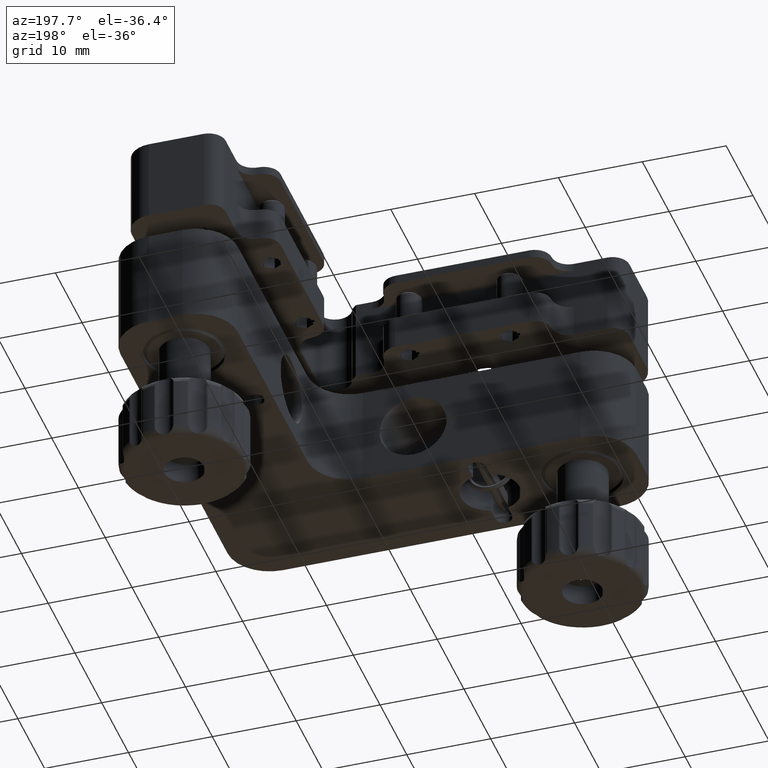
[diagram: clean part render]
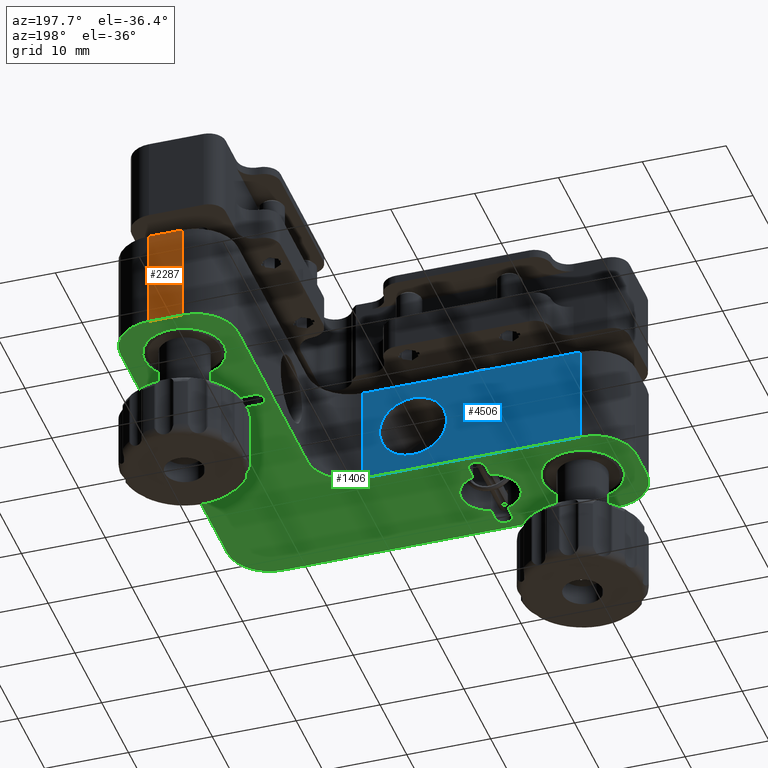
[diagram: same view with three faces highlighted in distinct colors, each labeled with its STEP entity id]
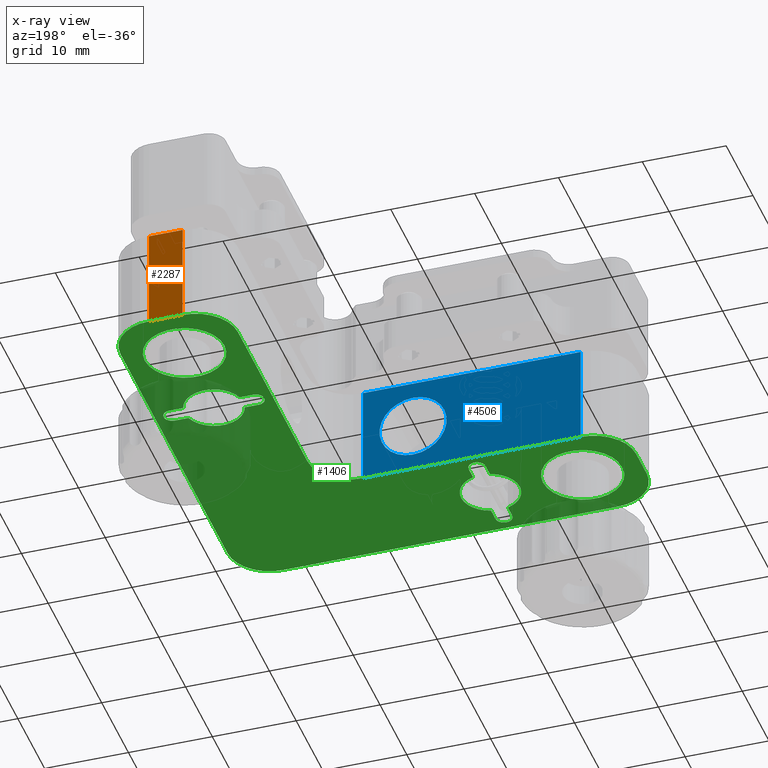
[diagram: x-ray of the same camera — body ghosted, the three highlighted faces saturated]
A machine part, auxiliary view with three faces highlighted in distinct colors.
The next image is the same camera in x-ray (body ghosted, the three faces saturated) — at least one of them is partly hidden behind the body in this view.
Their STEP definitions:

[orange] entity #2287 — the highlighted planar face has unit normal (0, 1, 0).
#212 = ORIENTED_EDGE ( 'NONE', *, *, #15155, .F. ) ;
#324 = EDGE_CURVE ( 'NONE', #1726, #4502, #9716, .T. ) ;
#819 = VECTOR ( 'NONE', #13203, 1000.000000000000000 ) ;
#1460 = CARTESIAN_POINT ( 'NONE',  ( 16.00000000000001421, 25.00000000000000711, -15.00000000000000355 ) ) ;
#1726 = VERTEX_POINT ( 'NONE', #10357 ) ;
#2287 = ADVANCED_FACE ( 'NONE', ( #5908 ), #3183, .T. ) ;
#2784 = DIRECTION ( 'NONE',  ( -1.000000000000000000, -0.000000000000000000, -0.000000000000000000 ) ) ;
#3183 = PLANE ( 'NONE',  #11677 ) ;
#3325 = VECTOR ( 'NONE', #8730, 1000.000000000000000 ) ;
#3950 = CARTESIAN_POINT ( 'NONE',  ( 16.00000000000001421, 25.00000000000000000, -15.00000000000000355 ) ) ;
#4413 = CARTESIAN_POINT ( 'NONE',  ( 16.00000000000001421, 25.00000000000000711, -15.00000000000000355 ) ) ;
#4502 = VERTEX_POINT ( 'NONE', #3950 ) ;
#4734 = CARTESIAN_POINT ( 'NONE',  ( 16.00000000000001421, 25.00000000000000000, -3.000000000000002665 ) ) ;
#4789 = CARTESIAN_POINT ( 'NONE',  ( 16.00000000000001421, 25.00000000000000711, -3.000000000000002665 ) ) ;
#5269 = VECTOR ( 'NONE', #2784, 1000.000000000000000 ) ;
#5908 = FACE_OUTER_BOUND ( 'NONE', #9624, .T. ) ;
#6454 = VERTEX_POINT ( 'NONE', #4734 ) ;
#6586 = LINE ( 'NONE', #14523, #10664 ) ;
#7029 = DIRECTION ( 'NONE',  ( 0.000000000000000000, -0.000000000000000000, 1.000000000000000000 ) ) ;
#7369 = CARTESIAN_POINT ( 'NONE',  ( 20.00000000000001776, 25.00000000000000711, -3.000000000000002665 ) ) ;
#7823 = CARTESIAN_POINT ( 'NONE',  ( 16.00000000000001421, 25.00000000000000000, -15.00000000000000355 ) ) ;
#8730 = DIRECTION ( 'NONE',  ( -1.000000000000000000, -0.000000000000000000, -0.000000000000000000 ) ) ;
#9624 = EDGE_LOOP ( 'NONE', ( #212, #11743, #15678, #11580 ) ) ;
#9716 = LINE ( 'NONE', #1460, #5269 ) ;
#10357 = CARTESIAN_POINT ( 'NONE',  ( 20.00000000000001776, 25.00000000000000711, -15.00000000000000355 ) ) ;
#10664 = VECTOR ( 'NONE', #14431, 1000.000000000000000 ) ;
#11006 = EDGE_CURVE ( 'NONE', #1726, #17204, #6586, .T. ) ;
#11258 = DIRECTION ( 'NONE',  ( 0.000000000000000000, 1.000000000000000000, 0.000000000000000000 ) ) ;
#11580 = ORIENTED_EDGE ( 'NONE', *, *, #15817, .T. ) ;
#11677 = AXIS2_PLACEMENT_3D ( 'NONE', #4413, #11258, #7029 ) ;
#11743 = ORIENTED_EDGE ( 'NONE', *, *, #11006, .F. ) ;
#13203 = DIRECTION ( 'NONE',  ( 0.000000000000000000, 0.000000000000000000, 1.000000000000000000 ) ) ;
#13362 = LINE ( 'NONE', #7823, #819 ) ;
#14431 = DIRECTION ( 'NONE',  ( 0.000000000000000000, 0.000000000000000000, 1.000000000000000000 ) ) ;
#14523 = CARTESIAN_POINT ( 'NONE',  ( 20.00000000000001776, 25.00000000000000711, -15.00000000000000355 ) ) ;
#15155 = EDGE_CURVE ( 'NONE', #17204, #6454, #15521, .T. ) ;
#15521 = LINE ( 'NONE', #4789, #3325 ) ;
#15678 = ORIENTED_EDGE ( 'NONE', *, *, #324, .T. ) ;
#15817 = EDGE_CURVE ( 'NONE', #4502, #6454, #13362, .T. ) ;
#17204 = VERTEX_POINT ( 'NONE', #7369 ) ;

[blue] entity #4506 — the highlighted planar face has unit normal (0, 1, -0).
#345 = CARTESIAN_POINT ( 'NONE',  ( -19.99999999999999645, -10.99999999999999289, -15.00000000000000355 ) ) ;
#717 = ORIENTED_EDGE ( 'NONE', *, *, #3877, .T. ) ;
#830 = DIRECTION ( 'NONE',  ( 0.000000000000000000, 0.000000000000000000, 1.000000000000000000 ) ) ;
#917 = VECTOR ( 'NONE', #14441, 1000.000000000000000 ) ;
#1226 = ORIENTED_EDGE ( 'NONE', *, *, #10425, .T. ) ;
#1540 = CARTESIAN_POINT ( 'NONE',  ( 6.000000000000008882, -11.00000000000000711, -3.000000000000002665 ) ) ;
#2403 = CARTESIAN_POINT ( 'NONE',  ( -19.99999999999999645, -10.99999999999999289, -15.00000000000000355 ) ) ;
#3157 = ORIENTED_EDGE ( 'NONE', *, *, #3227, .T. ) ;
#3227 = EDGE_CURVE ( 'NONE', #12491, #5750, #5522, .T. ) ;
#3617 = VERTEX_POINT ( 'NONE', #1540 ) ;
#3684 = DIRECTION ( 'NONE',  ( -5.337610695313251385E-16, -1.000000000000000000, 0.000000000000000000 ) ) ;
#3806 = CARTESIAN_POINT ( 'NONE',  ( 6.000000000000008882, -11.00000000000000711, -15.00000000000000355 ) ) ;
#3877 = EDGE_CURVE ( 'NONE', #9096, #14904, #14428, .T. ) ;
#3888 = DIRECTION ( 'NONE',  ( -1.000000000000000000, 5.337610695313251385E-16, -0.000000000000000000 ) ) ;
#4199 = EDGE_CURVE ( 'NONE', #3617, #5137, #13977, .T. ) ;
#4213 = PLANE ( 'NONE',  #6105 ) ;
#4259 = ORIENTED_EDGE ( 'NONE', *, *, #4199, .F. ) ;
#4379 = DIRECTION ( 'NONE',  ( 5.337610695313251385E-16, 1.000000000000000000, -0.000000000000000000 ) ) ;
#4440 = EDGE_LOOP ( 'NONE', ( #4259, #9787, #717, #15736 ) ) ;
#4506 = ADVANCED_FACE ( 'NONE', ( #10971, #10881 ), #4213, .T. ) ;
#4827 = CARTESIAN_POINT ( 'NONE',  ( 6.000000000000008882, -11.00000000000000711, -15.00000000000000355 ) ) ;
#5137 = VERTEX_POINT ( 'NONE', #7139 ) ;
#5315 = DIRECTION ( 'NONE',  ( -1.000000000000000000, 4.336808689942017736E-16, 0.000000000000000000 ) ) ;
#5522 = CIRCLE ( 'NONE', #8304, 4.000000000000000000 ) ;
#5750 = VERTEX_POINT ( 'NONE', #8618 ) ;
#5896 = CARTESIAN_POINT ( 'NONE',  ( -19.99999999999999645, -10.99999999999999289, -3.000000000000002665 ) ) ;
#6105 = AXIS2_PLACEMENT_3D ( 'NONE', #345, #4379, #8058 ) ;
#7139 = CARTESIAN_POINT ( 'NONE',  ( -19.99999999999999645, -11.00000000000000000, -3.000000000000002665 ) ) ;
#7284 = DIRECTION ( 'NONE',  ( -1.000000000000000000, 5.337610695313251385E-16, -0.000000000000000000 ) ) ;
#7303 = LINE ( 'NONE', #13903, #9207 ) ;
#7364 = CARTESIAN_POINT ( 'NONE',  ( -3.003590182049984513E-17, -11.00000000000000355, -9.000000000000003553 ) ) ;
#7928 = CARTESIAN_POINT ( 'NONE',  ( -3.003590182049984513E-17, -11.00000000000000355, -9.000000000000003553 ) ) ;
#8058 = DIRECTION ( 'NONE',  ( -1.000000000000000000, 5.337610695313251385E-16, 0.000000000000000000 ) ) ;
#8304 = AXIS2_PLACEMENT_3D ( 'NONE', #7364, #3684, #12743 ) ;
#8469 = EDGE_CURVE ( 'NONE', #9096, #3617, #14703, .T. ) ;
#8618 = CARTESIAN_POINT ( 'NONE',  ( -3.003590182049984513E-17, -11.00000000000000355, -13.00000000000000355 ) ) ;
#9096 = VERTEX_POINT ( 'NONE', #4827 ) ;
#9207 = VECTOR ( 'NONE', #830, 1000.000000000000000 ) ;
#9787 = ORIENTED_EDGE ( 'NONE', *, *, #8469, .F. ) ;
#10302 = VECTOR ( 'NONE', #7284, 1000.000000000000000 ) ;
#10425 = EDGE_CURVE ( 'NONE', #5750, #12491, #15981, .T. ) ;
#10881 = FACE_BOUND ( 'NONE', #14307, .T. ) ;
#10971 = FACE_OUTER_BOUND ( 'NONE', #4440, .T. ) ;
#11195 = AXIS2_PLACEMENT_3D ( 'NONE', #7928, #14365, #5315 ) ;
#12491 = VERTEX_POINT ( 'NONE', #16600 ) ;
#12743 = DIRECTION ( 'NONE',  ( -1.000000000000000000, 4.336808689942017736E-16, 0.000000000000000000 ) ) ;
#13903 = CARTESIAN_POINT ( 'NONE',  ( -19.99999999999999645, -11.00000000000000000, -15.00000000000000355 ) ) ;
#13977 = LINE ( 'NONE', #5896, #10302 ) ;
#14307 = EDGE_LOOP ( 'NONE', ( #1226, #3157 ) ) ;
#14365 = DIRECTION ( 'NONE',  ( -5.337610695313251385E-16, -1.000000000000000000, 0.000000000000000000 ) ) ;
#14428 = LINE ( 'NONE', #2403, #16773 ) ;
#14441 = DIRECTION ( 'NONE',  ( 0.000000000000000000, 0.000000000000000000, 1.000000000000000000 ) ) ;
#14703 = LINE ( 'NONE', #3806, #917 ) ;
#14904 = VERTEX_POINT ( 'NONE', #15980 ) ;
#15698 = EDGE_CURVE ( 'NONE', #14904, #5137, #7303, .T. ) ;
#15736 = ORIENTED_EDGE ( 'NONE', *, *, #15698, .T. ) ;
#15980 = CARTESIAN_POINT ( 'NONE',  ( -19.99999999999999645, -11.00000000000000000, -15.00000000000000355 ) ) ;
#15981 = CIRCLE ( 'NONE', #11195, 4.000000000000000000 ) ;
#16600 = CARTESIAN_POINT ( 'NONE',  ( 4.598228178384413761E-16, -11.00000000000000355, -5.000000000000002665 ) ) ;
#16773 = VECTOR ( 'NONE', #3888, 1000.000000000000000 ) ;

[green] entity #1406 — the highlighted planar face has unit normal (-0, 0, -1).
#38 = CARTESIAN_POINT ( 'NONE',  ( -7.999999999999986677, -13.00000000000000178, -15.00000000000000355 ) ) ;
#125 = DIRECTION ( 'NONE',  ( 0.000000000000000000, 0.000000000000000000, 1.000000000000000000 ) ) ;
#137 = DIRECTION ( 'NONE',  ( -1.000000000000000000, 0.000000000000000000, 0.000000000000000000 ) ) ;
#324 = EDGE_CURVE ( 'NONE', #1726, #4502, #9716, .T. ) ;
#364 = DIRECTION ( 'NONE',  ( 0.000000000000000000, -1.000000000000000000, 0.000000000000000000 ) ) ;
#388 = ORIENTED_EDGE ( 'NONE', *, *, #4097, .F. ) ;
#407 = ORIENTED_EDGE ( 'NONE', *, *, #16869, .F. ) ;
#507 = ORIENTED_EDGE ( 'NONE', *, *, #9056, .F. ) ;
#540 = VECTOR ( 'NONE', #5775, 1000.000000000000000 ) ;
#675 = EDGE_CURVE ( 'NONE', #14705, #3246, #2149, .T. ) ;
#708 = VERTEX_POINT ( 'NONE', #7489 ) ;
#739 = CIRCLE ( 'NONE', #3817, 1.000000000000000888 ) ;
#756 = VECTOR ( 'NONE', #3103, 1000.000000000000000 ) ;
#762 = CIRCLE ( 'NONE', #4951, 5.000000000000004441 ) ;
#814 = CARTESIAN_POINT ( 'NONE',  ( -6.999999999999989342, -23.00000000000000355, -15.00000000000000355 ) ) ;
#848 = VECTOR ( 'NONE', #6955, 1000.000000000000000 ) ;
#1170 = VERTEX_POINT ( 'NONE', #4662 ) ;
#1195 = CARTESIAN_POINT ( 'NONE',  ( -19.99999999999999645, -25.00000000000001066, -15.00000000000000355 ) ) ;
#1406 = ADVANCED_FACE ( 'NONE', ( #11783, #3955, #2826, #7812, #11862 ), #12036, .T. ) ;
#1419 = CARTESIAN_POINT ( 'NONE',  ( -22.74999999999998934, -18.00000000000000355, -15.00000000000000355 ) ) ;
#1420 = DIRECTION ( 'NONE',  ( 0.000000000000000000, 0.000000000000000000, 1.000000000000000000 ) ) ;
#1428 = EDGE_CURVE ( 'NONE', #4502, #16814, #13385, .T. ) ;
#1460 = CARTESIAN_POINT ( 'NONE',  ( 16.00000000000001421, 25.00000000000000711, -15.00000000000000355 ) ) ;
#1499 = EDGE_CURVE ( 'NONE', #1170, #15603, #739, .T. ) ;
#1561 = VERTEX_POINT ( 'NONE', #14945 ) ;
#1572 = VECTOR ( 'NONE', #14721, 1000.000000000000000 ) ;
#1584 = DIRECTION ( 'NONE',  ( -1.000000000000000000, 0.000000000000000000, 0.000000000000000000 ) ) ;
#1650 = CIRCLE ( 'NONE', #7801, 1.000000000000000888 ) ;
#1726 = VERTEX_POINT ( 'NONE', #10357 ) ;
#1804 = VERTEX_POINT ( 'NONE', #14480 ) ;
#1910 = DIRECTION ( 'NONE',  ( 1.000000000000000000, 0.000000000000000000, 0.000000000000000000 ) ) ;
#1912 = VECTOR ( 'NONE', #364, 1000.000000000000000 ) ;
#1939 = VERTEX_POINT ( 'NONE', #14664 ) ;
#1965 = CARTESIAN_POINT ( 'NONE',  ( -7.999999999999989342, -23.00000000000000355, -15.00000000000000355 ) ) ;
#2101 = LINE ( 'NONE', #7264, #8095 ) ;
#2149 = LINE ( 'NONE', #2332, #13413 ) ;
#2253 = DIRECTION ( 'NONE',  ( 1.000000000000000000, 0.000000000000000000, 0.000000000000000000 ) ) ;
#2301 = DIRECTION ( 'NONE',  ( 1.000000000000000000, 0.000000000000000000, 0.000000000000000000 ) ) ;
#2314 = CIRCLE ( 'NONE', #12392, 5.000000000000000888 ) ;
#2332 = CARTESIAN_POINT ( 'NONE',  ( -5.999999999999986677, -13.00000000000000178, -15.00000000000000355 ) ) ;
#2378 = EDGE_CURVE ( 'NONE', #16214, #1804, #4667, .T. ) ;
#2403 = CARTESIAN_POINT ( 'NONE',  ( -19.99999999999999645, -10.99999999999999289, -15.00000000000000355 ) ) ;
#2515 = EDGE_CURVE ( 'NONE', #17103, #1170, #8863, .T. ) ;
#2594 = AXIS2_PLACEMENT_3D ( 'NONE', #7407, #11465, #2253 ) ;
#2641 = DIRECTION ( 'NONE',  ( -1.000000000000000000, 0.000000000000000000, 0.000000000000000000 ) ) ;
#2721 = VECTOR ( 'NONE', #13731, 1000.000000000000000 ) ;
#2784 = DIRECTION ( 'NONE',  ( -1.000000000000000000, -0.000000000000000000, -0.000000000000000000 ) ) ;
#2817 = CIRCLE ( 'NONE', #12643, 1.000000000000000000 ) ;
#2826 = FACE_BOUND ( 'NONE', #8842, .T. ) ;
#2835 = CARTESIAN_POINT ( 'NONE',  ( 14.64589803375031707, 6.000000000000000000, -15.00000000000000355 ) ) ;
#2847 = LINE ( 'NONE', #9672, #2721 ) ;
#2885 = CARTESIAN_POINT ( 'NONE',  ( -25.00000000000000000, -19.99999999999999645, -15.00000000000000355 ) ) ;
#3001 = AXIS2_PLACEMENT_3D ( 'NONE', #4164, #13635, #5646 ) ;
#3103 = DIRECTION ( 'NONE',  ( -0.000000000000000000, 1.000000000000000000, -0.000000000000000000 ) ) ;
#3151 = DIRECTION ( 'NONE',  ( 0.000000000000000000, 0.000000000000000000, 1.000000000000000000 ) ) ;
#3246 = VERTEX_POINT ( 'NONE', #14399 ) ;
#3322 = LINE ( 'NONE', #12730, #540 ) ;
#3550 = VERTEX_POINT ( 'NONE', #10963 ) ;
#3579 = CARTESIAN_POINT ( 'NONE',  ( 11.00000000000001599, 19.99999999999998934, -15.00000000000000355 ) ) ;
#3661 = DIRECTION ( 'NONE',  ( 1.000000000000000000, 0.000000000000000000, 0.000000000000000000 ) ) ;
#3692 = DIRECTION ( 'NONE',  ( -0.000000000000000000, -0.000000000000000000, -1.000000000000000000 ) ) ;
#3755 = VERTEX_POINT ( 'NONE', #1195 ) ;
#3784 = VERTEX_POINT ( 'NONE', #14691 ) ;
#3817 = AXIS2_PLACEMENT_3D ( 'NONE', #11149, #12302, #1584 ) ;
#3877 = EDGE_CURVE ( 'NONE', #9096, #14904, #14428, .T. ) ;
#3888 = DIRECTION ( 'NONE',  ( -1.000000000000000000, 5.337610695313251385E-16, -0.000000000000000000 ) ) ;
#3890 = AXIS2_PLACEMENT_3D ( 'NONE', #11532, #10204, #8871 ) ;
#3909 = ORIENTED_EDGE ( 'NONE', *, *, #2515, .F. ) ;
#3950 = CARTESIAN_POINT ( 'NONE',  ( 16.00000000000001421, 25.00000000000000000, -15.00000000000000355 ) ) ;
#3955 = FACE_BOUND ( 'NONE', #5459, .T. ) ;
#4007 = EDGE_CURVE ( 'NONE', #708, #12458, #13544, .T. ) ;
#4097 = EDGE_CURVE ( 'NONE', #3755, #6474, #9923, .T. ) ;
#4123 = CIRCLE ( 'NONE', #15082, 3.499999999999999556 ) ;
#4130 = CIRCLE ( 'NONE', #15648, 3.499999999999999556 ) ;
#4164 = CARTESIAN_POINT ( 'NONE',  ( -17.99999999999998934, -18.00000000000000355, -15.00000000000000355 ) ) ;
#4269 = CIRCLE ( 'NONE', #2594, 3.499999999999997780 ) ;
#4315 = EDGE_CURVE ( 'NONE', #3550, #5219, #5830, .T. ) ;
#4401 = VECTOR ( 'NONE', #7556, 1000.000000000000000 ) ;
#4502 = VERTEX_POINT ( 'NONE', #3950 ) ;
#4577 = ORIENTED_EDGE ( 'NONE', *, *, #14554, .T. ) ;
#4594 = VERTEX_POINT ( 'NONE', #9829 ) ;
#4662 = CARTESIAN_POINT ( 'NONE',  ( 13.00000000000000178, 6.000000000000000000, -15.00000000000000355 ) ) ;
#4667 = LINE ( 'NONE', #8522, #756 ) ;
#4675 = CARTESIAN_POINT ( 'NONE',  ( 12.00000000000000000, 7.000000000000001776, -15.00000000000000355 ) ) ;
#4819 = ORIENTED_EDGE ( 'NONE', *, *, #11593, .F. ) ;
#4827 = CARTESIAN_POINT ( 'NONE',  ( 6.000000000000008882, -11.00000000000000711, -15.00000000000000355 ) ) ;
#4877 = ORIENTED_EDGE ( 'NONE', *, *, #13660, .T. ) ;
#4912 = DIRECTION ( 'NONE',  ( -1.000000000000000000, 0.000000000000000000, 0.000000000000000000 ) ) ;
#4951 = AXIS2_PLACEMENT_3D ( 'NONE', #14559, #7937, #137 ) ;
#4972 = AXIS2_PLACEMENT_3D ( 'NONE', #17166, #17250, #6411 ) ;
#5011 = CARTESIAN_POINT ( 'NONE',  ( 18.00000000000001421, 18.00000000000000000, -15.00000000000000355 ) ) ;
#5108 = CIRCLE ( 'NONE', #8731, 5.000000000000004441 ) ;
#5130 = DIRECTION ( 'NONE',  ( 1.000000000000000000, 0.000000000000000000, 0.000000000000000000 ) ) ;
#5219 = VERTEX_POINT ( 'NONE', #11729 ) ;
#5239 = AXIS2_PLACEMENT_3D ( 'NONE', #10499, #15877, #3661 ) ;
#5246 = VERTEX_POINT ( 'NONE', #14537 ) ;
#5269 = VECTOR ( 'NONE', #2784, 1000.000000000000000 ) ;
#5390 = AXIS2_PLACEMENT_3D ( 'NONE', #8746, #10160, #14118 ) ;
#5421 = VERTEX_POINT ( 'NONE', #6948 ) ;
#5459 = EDGE_LOOP ( 'NONE', ( #11319, #4877, #4819, #5986, #12324, #3909, #12221, #407, #6041 ) ) ;
#5481 = DIRECTION ( 'NONE',  ( 0.000000000000000000, 0.000000000000000000, 1.000000000000000000 ) ) ;
#5619 = DIRECTION ( 'NONE',  ( 1.000000000000000000, 0.000000000000000000, 0.000000000000000000 ) ) ;
#5640 = ORIENTED_EDGE ( 'NONE', *, *, #10039, .F. ) ;
#5646 = DIRECTION ( 'NONE',  ( 1.000000000000000000, 0.000000000000000000, 0.000000000000000000 ) ) ;
#5673 = DIRECTION ( 'NONE',  ( -1.000000000000000000, 0.000000000000000000, 0.000000000000000000 ) ) ;
#5679 = VERTEX_POINT ( 'NONE', #15233 ) ;
#5763 = ORIENTED_EDGE ( 'NONE', *, *, #8683, .T. ) ;
#5775 = DIRECTION ( 'NONE',  ( 0.000000000000000000, 1.000000000000000000, 0.000000000000000000 ) ) ;
#5830 = CIRCLE ( 'NONE', #15101, 4.750000000000000888 ) ;
#5920 = CARTESIAN_POINT ( 'NONE',  ( 13.00000000000000178, 8.000000000000001776, -15.00000000000000355 ) ) ;
#5930 = ORIENTED_EDGE ( 'NONE', *, *, #7617, .F. ) ;
#5986 = ORIENTED_EDGE ( 'NONE', *, *, #15033, .F. ) ;
#5991 = VERTEX_POINT ( 'NONE', #1419 ) ;
#6041 = ORIENTED_EDGE ( 'NONE', *, *, #12745, .F. ) ;
#6138 = CARTESIAN_POINT ( 'NONE',  ( 20.00000000000001776, -25.00000000000000000, -15.00000000000000355 ) ) ;
#6154 = DIRECTION ( 'NONE',  ( 0.000000000000000000, 0.000000000000000000, -1.000000000000000000 ) ) ;
#6220 = LINE ( 'NONE', #15729, #1572 ) ;
#6392 = VECTOR ( 'NONE', #7347, 1000.000000000000000 ) ;
#6411 = DIRECTION ( 'NONE',  ( -1.000000000000000000, 0.000000000000000000, 0.000000000000000000 ) ) ;
#6474 = VERTEX_POINT ( 'NONE', #6138 ) ;
#6511 = CARTESIAN_POINT ( 'NONE',  ( 23.00000000000000355, 8.000000000000000000, -15.00000000000000355 ) ) ;
#6524 = ORIENTED_EDGE ( 'NONE', *, *, #12845, .F. ) ;
#6557 = CARTESIAN_POINT ( 'NONE',  ( 21.35410196624968648, 8.000000000000000000, -15.00000000000000355 ) ) ;
#6642 = VECTOR ( 'NONE', #16805, 1000.000000000000000 ) ;
#6842 = CARTESIAN_POINT ( 'NONE',  ( -5.999999999999986677, -21.35410196624968648, -15.00000000000000355 ) ) ;
#6948 = CARTESIAN_POINT ( 'NONE',  ( 23.00000000000000355, 6.000000000000000000, -15.00000000000000355 ) ) ;
#6951 = LINE ( 'NONE', #38, #15105 ) ;
#6955 = DIRECTION ( 'NONE',  ( -1.000000000000000000, 0.000000000000000000, 0.000000000000000000 ) ) ;
#6984 = ORIENTED_EDGE ( 'NONE', *, *, #3877, .F. ) ;
#7020 = EDGE_LOOP ( 'NONE', ( #5930, #12696, #14358, #15518, #14731, #14212, #12004, #388, #16878, #12150, #6524, #6984 ) ) ;
#7257 = EDGE_LOOP ( 'NONE', ( #10953, #10725 ) ) ;
#7264 = CARTESIAN_POINT ( 'NONE',  ( -5.999999999999986677, -6.000000000000006217, -15.00000000000000355 ) ) ;
#7347 = DIRECTION ( 'NONE',  ( -2.668805347656626678E-16, -1.000000000000000000, 0.000000000000000000 ) ) ;
#7349 = DIRECTION ( 'NONE',  ( 0.000000000000000000, -1.000000000000000000, 0.000000000000000000 ) ) ;
#7407 = CARTESIAN_POINT ( 'NONE',  ( -6.999999999999989342, -18.00000000000000355, -15.00000000000000355 ) ) ;
#7489 = CARTESIAN_POINT ( 'NONE',  ( -24.99999999999999289, -16.00000000000000711, -15.00000000000000355 ) ) ;
#7500 = EDGE_CURVE ( 'NONE', #1804, #1726, #5108, .T. ) ;
#7556 = DIRECTION ( 'NONE',  ( -1.000000000000000000, 0.000000000000000000, 0.000000000000000000 ) ) ;
#7617 = EDGE_CURVE ( 'NONE', #13900, #9096, #2314, .T. ) ;
#7658 = DIRECTION ( 'NONE',  ( 0.000000000000000000, -1.000000000000000000, 0.000000000000000000 ) ) ;
#7764 = CARTESIAN_POINT ( 'NONE',  ( -3.499999999999992006, -18.00000000000000355, -15.00000000000000355 ) ) ;
#7801 = AXIS2_PLACEMENT_3D ( 'NONE', #10945, #16321, #5673 ) ;
#7807 = EDGE_CURVE ( 'NONE', #1939, #5991, #14660, .T. ) ;
#7812 = FACE_BOUND ( 'NONE', #7257, .T. ) ;
#7917 = CARTESIAN_POINT ( 'NONE',  ( 18.00000000000000355, 7.000000000000000000, -15.00000000000000355 ) ) ;
#7926 = CARTESIAN_POINT ( 'NONE',  ( -6.999999999999989342, -18.00000000000000355, -15.00000000000000355 ) ) ;
#7937 = DIRECTION ( 'NONE',  ( 0.000000000000000000, 0.000000000000000000, 1.000000000000000000 ) ) ;
#7977 = DIRECTION ( 'NONE',  ( 1.000000000000000000, 0.000000000000000000, 0.000000000000000000 ) ) ;
#8056 = CARTESIAN_POINT ( 'NONE',  ( -7.999999999999986677, -14.64589803375031885, -15.00000000000000355 ) ) ;
#8074 = DIRECTION ( 'NONE',  ( 1.000000000000000000, 0.000000000000000000, 0.000000000000000000 ) ) ;
#8095 = VECTOR ( 'NONE', #7349, 1000.000000000000000 ) ;
#8374 = EDGE_CURVE ( 'NONE', #10460, #3246, #4269, .T. ) ;
#8481 = ORIENTED_EDGE ( 'NONE', *, *, #14849, .T. ) ;
#8483 = EDGE_CURVE ( 'NONE', #17103, #5246, #4123, .T. ) ;
#8522 = CARTESIAN_POINT ( 'NONE',  ( 25.00000000000001421, 19.99999999999998934, -15.00000000000000355 ) ) ;
#8587 = CIRCLE ( 'NONE', #5239, 1.000000000000000888 ) ;
#8683 = EDGE_CURVE ( 'NONE', #5991, #1939, #10849, .T. ) ;
#8704 = EDGE_CURVE ( 'NONE', #12337, #11757, #2847, .T. ) ;
#8731 = AXIS2_PLACEMENT_3D ( 'NONE', #10839, #5481, #16394 ) ;
#8746 = CARTESIAN_POINT ( 'NONE',  ( -17.99999999999998934, -18.00000000000000355, -15.00000000000000355 ) ) ;
#8826 = CARTESIAN_POINT ( 'NONE',  ( -5.999999999999986677, -13.00000000000000178, -15.00000000000000355 ) ) ;
#8842 = EDGE_LOOP ( 'NONE', ( #15288, #5763 ) ) ;
#8863 = LINE ( 'NONE', #16985, #4401 ) ;
#8871 = DIRECTION ( 'NONE',  ( -1.000000000000000000, 0.000000000000000000, 0.000000000000000000 ) ) ;
#9056 = EDGE_CURVE ( 'NONE', #1561, #14705, #11692, .T. ) ;
#9096 = VERTEX_POINT ( 'NONE', #4827 ) ;
#9296 = CARTESIAN_POINT ( 'NONE',  ( 16.00000000000001421, 19.99999999999999645, -15.00000000000000355 ) ) ;
#9475 = DIRECTION ( 'NONE',  ( 0.000000000000000000, 0.000000000000000000, 1.000000000000000000 ) ) ;
#9518 = VERTEX_POINT ( 'NONE', #8056 ) ;
#9532 = AXIS2_PLACEMENT_3D ( 'NONE', #7926, #125, #10832 ) ;
#9672 = CARTESIAN_POINT ( 'NONE',  ( 23.00000000000000355, 8.000000000000000000, -15.00000000000000355 ) ) ;
#9679 = CARTESIAN_POINT ( 'NONE',  ( 23.00000000000000355, 6.000000000000000000, -15.00000000000000355 ) ) ;
#9716 = LINE ( 'NONE', #1460, #5269 ) ;
#9751 = CARTESIAN_POINT ( 'NONE',  ( -6.999999999999986677, -13.00000000000000178, -15.00000000000000355 ) ) ;
#9829 = CARTESIAN_POINT ( 'NONE',  ( -10.49999999999998934, -18.00000000000000355, -15.00000000000000355 ) ) ;
#9863 = EDGE_CURVE ( 'NONE', #4594, #10382, #11219, .T. ) ;
#9883 = DIRECTION ( 'NONE',  ( 0.000000000000000000, 0.000000000000000000, 1.000000000000000000 ) ) ;
#9923 = LINE ( 'NONE', #11247, #6642 ) ;
#10039 = EDGE_CURVE ( 'NONE', #5679, #12201, #2817, .T. ) ;
#10160 = DIRECTION ( 'NONE',  ( 0.000000000000000000, 0.000000000000000000, 1.000000000000000000 ) ) ;
#10182 = DIRECTION ( 'NONE',  ( 1.000000000000000000, 0.000000000000000000, 0.000000000000000000 ) ) ;
#10204 = DIRECTION ( 'NONE',  ( 0.000000000000000000, 0.000000000000000000, 1.000000000000000000 ) ) ;
#10357 = CARTESIAN_POINT ( 'NONE',  ( 20.00000000000001776, 25.00000000000000711, -15.00000000000000355 ) ) ;
#10382 = VERTEX_POINT ( 'NONE', #14859 ) ;
#10401 = DIRECTION ( 'NONE',  ( 0.000000000000000000, 0.000000000000000000, 1.000000000000000000 ) ) ;
#10460 = VERTEX_POINT ( 'NONE', #7764 ) ;
#10480 = EDGE_LOOP ( 'NONE', ( #11100, #8481, #15386, #15246, #5640, #13505, #4577, #13741, #11982, #507 ) ) ;
#10499 = CARTESIAN_POINT ( 'NONE',  ( 23.00000000000000355, 7.000000000000000000, -15.00000000000000355 ) ) ;
#10725 = ORIENTED_EDGE ( 'NONE', *, *, #11331, .T. ) ;
#10803 = CARTESIAN_POINT ( 'NONE',  ( 20.00000000000001776, -19.99999999999999645, -15.00000000000000355 ) ) ;
#10832 = DIRECTION ( 'NONE',  ( 1.000000000000000000, 0.000000000000000000, 0.000000000000000000 ) ) ;
#10839 = CARTESIAN_POINT ( 'NONE',  ( 20.00000000000001776, 19.99999999999999645, -15.00000000000000355 ) ) ;
#10849 = CIRCLE ( 'NONE', #3001, 4.750000000000000888 ) ;
#10878 = VERTEX_POINT ( 'NONE', #5920 ) ;
#10886 = CARTESIAN_POINT ( 'NONE',  ( 18.00000000000001421, 18.00000000000000000, -15.00000000000000355 ) ) ;
#10945 = CARTESIAN_POINT ( 'NONE',  ( 13.00000000000000178, 7.000000000000001776, -15.00000000000000355 ) ) ;
#10953 = ORIENTED_EDGE ( 'NONE', *, *, #4315, .T. ) ;
#10963 = CARTESIAN_POINT ( 'NONE',  ( 22.75000000000001776, 18.00000000000000000, -15.00000000000000355 ) ) ;
#11008 = CARTESIAN_POINT ( 'NONE',  ( 11.00000000000001599, 19.99999999999998934, -15.00000000000000355 ) ) ;
#11100 = ORIENTED_EDGE ( 'NONE', *, *, #16510, .F. ) ;
#11149 = CARTESIAN_POINT ( 'NONE',  ( 13.00000000000000178, 7.000000000000001776, -15.00000000000000355 ) ) ;
#11198 = VERTEX_POINT ( 'NONE', #6842 ) ;
#11219 = CIRCLE ( 'NONE', #9532, 3.499999999999997780 ) ;
#11247 = CARTESIAN_POINT ( 'NONE',  ( -19.99999999999999645, -25.00000000000001066, -15.00000000000000355 ) ) ;
#11312 = CARTESIAN_POINT ( 'NONE',  ( -6.999999999999989342, -18.00000000000000355, -15.00000000000000355 ) ) ;
#11319 = ORIENTED_EDGE ( 'NONE', *, *, #8704, .F. ) ;
#11331 = EDGE_CURVE ( 'NONE', #5219, #3550, #14192, .T. ) ;
#11465 = DIRECTION ( 'NONE',  ( 0.000000000000000000, 0.000000000000000000, 1.000000000000000000 ) ) ;
#11532 = CARTESIAN_POINT ( 'NONE',  ( -19.99999999999999645, -20.00000000000000000, -15.00000000000000355 ) ) ;
#11593 = EDGE_CURVE ( 'NONE', #10878, #3784, #6220, .T. ) ;
#11637 = CARTESIAN_POINT ( 'NONE',  ( 18.00000000000000355, 7.000000000000000000, -15.00000000000000355 ) ) ;
#11692 = CIRCLE ( 'NONE', #16187, 1.000000000000000000 ) ;
#11729 = CARTESIAN_POINT ( 'NONE',  ( 13.25000000000001599, 18.00000000000000000, -15.00000000000000355 ) ) ;
#11757 = VERTEX_POINT ( 'NONE', #6511 ) ;
#11783 = FACE_BOUND ( 'NONE', #10480, .T. ) ;
#11862 = FACE_OUTER_BOUND ( 'NONE', #7020, .T. ) ;
#11982 = ORIENTED_EDGE ( 'NONE', *, *, #675, .F. ) ;
#12004 = ORIENTED_EDGE ( 'NONE', *, *, #14443, .F. ) ;
#12014 = AXIS2_PLACEMENT_3D ( 'NONE', #15882, #13161, #14465 ) ;
#12036 = PLANE ( 'NONE',  #4972 ) ;
#12150 = ORIENTED_EDGE ( 'NONE', *, *, #4007, .F. ) ;
#12201 = VERTEX_POINT ( 'NONE', #1965 ) ;
#12221 = ORIENTED_EDGE ( 'NONE', *, *, #8483, .T. ) ;
#12290 = CARTESIAN_POINT ( 'NONE',  ( 25.00000000000001421, -19.99999999999998934, -15.00000000000000355 ) ) ;
#12302 = DIRECTION ( 'NONE',  ( 0.000000000000000000, 0.000000000000000000, -1.000000000000000000 ) ) ;
#12324 = ORIENTED_EDGE ( 'NONE', *, *, #1499, .F. ) ;
#12332 = DIRECTION ( 'NONE',  ( -0.000000000000000000, 1.000000000000000000, -0.000000000000000000 ) ) ;
#12337 = VERTEX_POINT ( 'NONE', #6557 ) ;
#12392 = AXIS2_PLACEMENT_3D ( 'NONE', #13092, #3692, #14324 ) ;
#12396 = CARTESIAN_POINT ( 'NONE',  ( -24.99999999999999289, -16.00000000000000711, -15.00000000000000355 ) ) ;
#12458 = VERTEX_POINT ( 'NONE', #2885 ) ;
#12475 = DIRECTION ( 'NONE',  ( -0.000000000000000000, 0.000000000000000000, -1.000000000000000000 ) ) ;
#12496 = AXIS2_PLACEMENT_3D ( 'NONE', #10886, #9475, #5619 ) ;
#12558 = CIRCLE ( 'NONE', #14803, 5.000000000000004441 ) ;
#12643 = AXIS2_PLACEMENT_3D ( 'NONE', #814, #6154, #4912 ) ;
#12696 = ORIENTED_EDGE ( 'NONE', *, *, #14732, .F. ) ;
#12730 = CARTESIAN_POINT ( 'NONE',  ( -7.999999999999986677, -6.000000000000006217, -15.00000000000000355 ) ) ;
#12745 = EDGE_CURVE ( 'NONE', #11757, #5421, #8587, .T. ) ;
#12845 = EDGE_CURVE ( 'NONE', #14904, #708, #762, .T. ) ;
#13092 = CARTESIAN_POINT ( 'NONE',  ( 6.000000000000008882, -6.000000000000006217, -15.00000000000000355 ) ) ;
#13161 = DIRECTION ( 'NONE',  ( 0.000000000000000000, 0.000000000000000000, 1.000000000000000000 ) ) ;
#13385 = CIRCLE ( 'NONE', #15641, 5.000000000000004441 ) ;
#13413 = VECTOR ( 'NONE', #7658, 1000.000000000000000 ) ;
#13505 = ORIENTED_EDGE ( 'NONE', *, *, #16581, .F. ) ;
#13544 = LINE ( 'NONE', #12396, #1912 ) ;
#13558 = CARTESIAN_POINT ( 'NONE',  ( 11.00000000000001066, -6.000000000000005329, -15.00000000000000355 ) ) ;
#13635 = DIRECTION ( 'NONE',  ( 0.000000000000000000, 0.000000000000000000, 1.000000000000000000 ) ) ;
#13660 = EDGE_CURVE ( 'NONE', #12337, #3784, #4130, .T. ) ;
#13731 = DIRECTION ( 'NONE',  ( 1.000000000000000000, -0.000000000000000000, -0.000000000000000000 ) ) ;
#13741 = ORIENTED_EDGE ( 'NONE', *, *, #8374, .T. ) ;
#13819 = LINE ( 'NONE', #9679, #848 ) ;
#13900 = VERTEX_POINT ( 'NONE', #13558 ) ;
#13952 = EDGE_CURVE ( 'NONE', #12201, #10382, #6951, .T. ) ;
#13985 = CIRCLE ( 'NONE', #3890, 5.000000000000004441 ) ;
#14118 = DIRECTION ( 'NONE',  ( 1.000000000000000000, 0.000000000000000000, 0.000000000000000000 ) ) ;
#14192 = CIRCLE ( 'NONE', #12496, 4.750000000000000888 ) ;
#14212 = ORIENTED_EDGE ( 'NONE', *, *, #2378, .F. ) ;
#14324 = DIRECTION ( 'NONE',  ( -1.000000000000000000, 0.000000000000000000, 0.000000000000000000 ) ) ;
#14358 = ORIENTED_EDGE ( 'NONE', *, *, #1428, .F. ) ;
#14399 = CARTESIAN_POINT ( 'NONE',  ( -5.999999999999986677, -14.64589803375032062, -15.00000000000000355 ) ) ;
#14428 = LINE ( 'NONE', #2403, #16773 ) ;
#14443 = EDGE_CURVE ( 'NONE', #6474, #16214, #12558, .T. ) ;
#14465 = DIRECTION ( 'NONE',  ( 1.000000000000000000, 0.000000000000000000, 0.000000000000000000 ) ) ;
#14480 = CARTESIAN_POINT ( 'NONE',  ( 25.00000000000002132, 19.99999999999998934, -15.00000000000000355 ) ) ;
#14537 = CARTESIAN_POINT ( 'NONE',  ( 21.35410196624968648, 6.000000000000000000, -15.00000000000000355 ) ) ;
#14554 = EDGE_CURVE ( 'NONE', #11198, #10460, #15675, .T. ) ;
#14559 = CARTESIAN_POINT ( 'NONE',  ( -19.99999999999999645, -16.00000000000000355, -15.00000000000000355 ) ) ;
#14589 = DIRECTION ( 'NONE',  ( 0.000000000000000000, 0.000000000000000000, 1.000000000000000000 ) ) ;
#14660 = CIRCLE ( 'NONE', #5390, 4.750000000000000888 ) ;
#14664 = CARTESIAN_POINT ( 'NONE',  ( -13.24999999999998757, -18.00000000000000355, -15.00000000000000355 ) ) ;
#14680 = DIRECTION ( 'NONE',  ( 0.000000000000000000, 0.000000000000000000, 1.000000000000000000 ) ) ;
#14691 = CARTESIAN_POINT ( 'NONE',  ( 14.64589803375031707, 8.000000000000000000, -15.00000000000000355 ) ) ;
#14705 = VERTEX_POINT ( 'NONE', #8826 ) ;
#14721 = DIRECTION ( 'NONE',  ( 1.000000000000000000, -0.000000000000000000, -0.000000000000000000 ) ) ;
#14732 = EDGE_CURVE ( 'NONE', #16814, #13900, #17137, .T. ) ;
#14731 = ORIENTED_EDGE ( 'NONE', *, *, #7500, .F. ) ;
#14803 = AXIS2_PLACEMENT_3D ( 'NONE', #10803, #3151, #7977 ) ;
#14849 = EDGE_CURVE ( 'NONE', #9518, #4594, #17373, .T. ) ;
#14859 = CARTESIAN_POINT ( 'NONE',  ( -7.999999999999986677, -21.35410196624968648, -15.00000000000000355 ) ) ;
#14904 = VERTEX_POINT ( 'NONE', #15980 ) ;
#14945 = CARTESIAN_POINT ( 'NONE',  ( -7.999999999999986677, -13.00000000000000178, -15.00000000000000355 ) ) ;
#15033 = EDGE_CURVE ( 'NONE', #15603, #10878, #1650, .T. ) ;
#15082 = AXIS2_PLACEMENT_3D ( 'NONE', #7917, #10401, #5130 ) ;
#15101 = AXIS2_PLACEMENT_3D ( 'NONE', #5011, #14589, #2301 ) ;
#15105 = VECTOR ( 'NONE', #12332, 1000.000000000000000 ) ;
#15233 = CARTESIAN_POINT ( 'NONE',  ( -5.999999999999986677, -23.00000000000000355, -15.00000000000000355 ) ) ;
#15246 = ORIENTED_EDGE ( 'NONE', *, *, #13952, .F. ) ;
#15288 = ORIENTED_EDGE ( 'NONE', *, *, #7807, .T. ) ;
#15386 = ORIENTED_EDGE ( 'NONE', *, *, #9863, .T. ) ;
#15518 = ORIENTED_EDGE ( 'NONE', *, *, #324, .F. ) ;
#15603 = VERTEX_POINT ( 'NONE', #4675 ) ;
#15641 = AXIS2_PLACEMENT_3D ( 'NONE', #9296, #14680, #2641 ) ;
#15648 = AXIS2_PLACEMENT_3D ( 'NONE', #11637, #9883, #1910 ) ;
#15675 = CIRCLE ( 'NONE', #16231, 3.499999999999997780 ) ;
#15729 = CARTESIAN_POINT ( 'NONE',  ( 23.00000000000000355, 8.000000000000000000, -15.00000000000000355 ) ) ;
#15732 = EDGE_CURVE ( 'NONE', #12458, #3755, #13985, .T. ) ;
#15877 = DIRECTION ( 'NONE',  ( -0.000000000000000000, 0.000000000000000000, -1.000000000000000000 ) ) ;
#15882 = CARTESIAN_POINT ( 'NONE',  ( -6.999999999999989342, -18.00000000000000355, -15.00000000000000355 ) ) ;
#15980 = CARTESIAN_POINT ( 'NONE',  ( -19.99999999999999645, -11.00000000000000000, -15.00000000000000355 ) ) ;
#16187 = AXIS2_PLACEMENT_3D ( 'NONE', #9751, #12475, #10182 ) ;
#16214 = VERTEX_POINT ( 'NONE', #12290 ) ;
#16231 = AXIS2_PLACEMENT_3D ( 'NONE', #11312, #1420, #8074 ) ;
#16321 = DIRECTION ( 'NONE',  ( 0.000000000000000000, 0.000000000000000000, -1.000000000000000000 ) ) ;
#16394 = DIRECTION ( 'NONE',  ( -1.000000000000000000, 0.000000000000000000, 0.000000000000000000 ) ) ;
#16510 = EDGE_CURVE ( 'NONE', #9518, #1561, #3322, .T. ) ;
#16581 = EDGE_CURVE ( 'NONE', #11198, #5679, #2101, .T. ) ;
#16773 = VECTOR ( 'NONE', #3888, 1000.000000000000000 ) ;
#16805 = DIRECTION ( 'NONE',  ( 1.000000000000000000, 8.673617379884034239E-17, 0.000000000000000000 ) ) ;
#16814 = VERTEX_POINT ( 'NONE', #11008 ) ;
#16869 = EDGE_CURVE ( 'NONE', #5421, #5246, #13819, .T. ) ;
#16878 = ORIENTED_EDGE ( 'NONE', *, *, #15732, .F. ) ;
#16985 = CARTESIAN_POINT ( 'NONE',  ( 23.00000000000000355, 6.000000000000000000, -15.00000000000000355 ) ) ;
#17103 = VERTEX_POINT ( 'NONE', #2835 ) ;
#17137 = LINE ( 'NONE', #3579, #6392 ) ;
#17166 = CARTESIAN_POINT ( 'NONE',  ( 6.000000000000008882, -6.000000000000006217, -15.00000000000000355 ) ) ;
#17250 = DIRECTION ( 'NONE',  ( -0.000000000000000000, 0.000000000000000000, -1.000000000000000000 ) ) ;
#17373 = CIRCLE ( 'NONE', #12014, 3.499999999999997780 ) ;